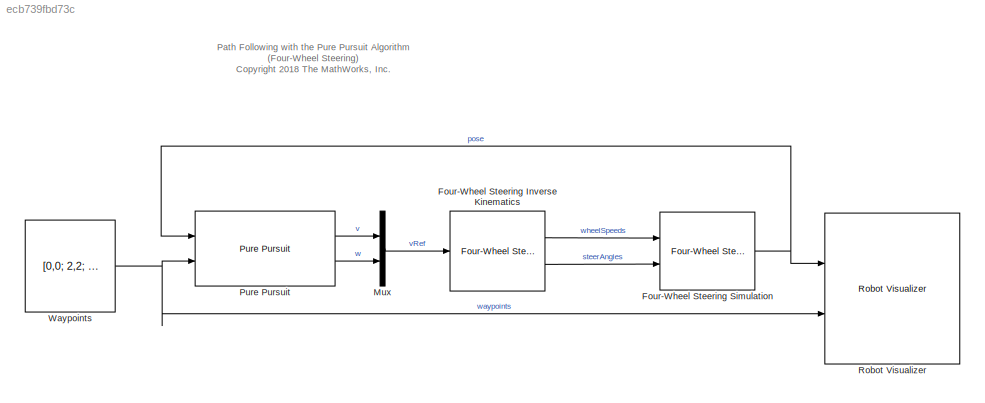
MODEL slx_ecb739fbd73c
KIND model
CONFIG AbsTol = auto
CONFIG EnableMultiTasking = on
CONFIG FixedStep = 0.01
CONFIG MaxStep = auto
CONFIG MinStep = auto
CONFIG PreLoadFcn = % Simulation parameters\nsampleTime = 0.05;\n\n% Vehicle parameters\nwheelRadius = 0.1;\nfrontWheelDist = 0.25;\nrearWheelDist = 0.25;
CONFIG RelTol = 1e-3
CONFIG SampleTimeConstraint = Unconstrained
CONFIG Solver = VariableStepAuto
CONFIG SolverName = VariableStepAuto
CONFIG StartTime = 0.0
CONFIG StopTime = 25
BLOCK [Reference] Four-Wheel Steering Inverse Kinematics  REF=mobileRoboticsLib/Kinematic Models/Four-Wheel Steering/Four-Wheel Steering
Inverse Kinematics
  Ports = [1, 2]
  SourceBlock = mobileRoboticsLib/Kinematic Models/Four-Wheel Steering/Four-Wheel Steering\nInverse Kinematics
  SourceProductName = Mobile Robotics Simulation Library
  SourceType = Four-Wheel Steering Inverse Kinematics
BLOCK [Reference] Four-Wheel Steering Simulation  REF=mobileRoboticsLib/Kinematic Models/Four-Wheel Steering/Four-Wheel Steering Simulation
  Ports = [2, 1]
  SourceBlock = mobileRoboticsLib/Kinematic Models/Four-Wheel Steering/Four-Wheel Steering Simulation
  SourceProductName = Mobile Robotics Simulation Library
  SourceType = Four-Wheel Steering Simulation
BLOCK [Mux] Mux
  DisplayOption = bar
  Inputs = 2
  Ports = [2, 1]
BLOCK [Reference] Pure Pursuit  REF=robotalgslib/Pure Pursuit
  Ports = [2, 2]
  SourceBlock = robotalgslib/Pure Pursuit
  SourceProductBaseCode = RO
  SourceProductName = Robotics System Toolbox
  SourceType = robotics.slalgs.internal.PurePursuit
BLOCK [Reference] Robot Visualizer  REF=mobileRoboticsLib/Environments/Robot Visualizer
  Ports = [2]
  Priority = 99
  SourceBlock = mobileRoboticsLib/Environments/Robot Visualizer
  SourceProductName = Ground Vehicles Library
  SourceType = Visualizer2D
BLOCK [Constant] Waypoints
  Value = [0,0; 2,2; 4,2; 2,4; 0.5,3]
ANNOTATION (root): Path Following with the Pure Pursuit Algorithm (Four-Wheel Steering) <copyright redacted>
LINE Four-Wheel Steering Inverse Kinematics:1 -> Four-Wheel Steering Simulation:1
LINE Four-Wheel Steering Inverse Kinematics:2 -> Four-Wheel Steering Simulation:2
NET Four-Wheel Steering Simulation:1 -> Pure Pursuit:1, Robot Visualizer:1
LINE Mux:1 -> Four-Wheel Steering Inverse Kinematics:1
LINE Pure Pursuit:1 -> Mux:1
LINE Pure Pursuit:2 -> Mux:2
NET Waypoints:1 -> Pure Pursuit:2, Robot Visualizer:2
note: NET lines group one-source signal fan-out (src -> all destinations, sorted); 1:1 wires keep LINE
